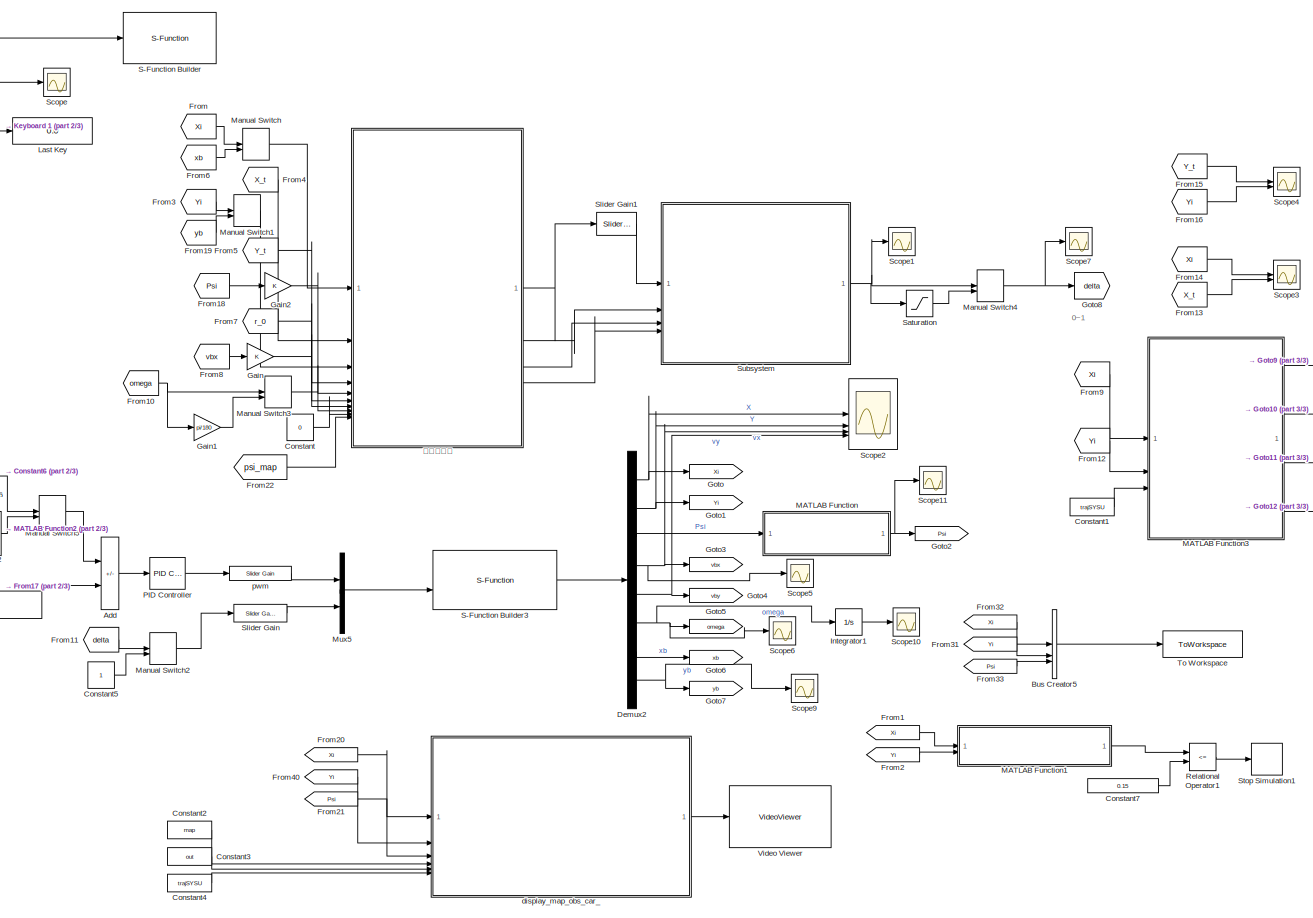
[diagram: root canvas - part 1/3, most of the canvas]
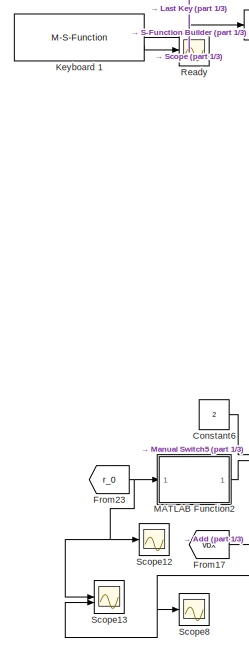
[diagram: root canvas - part 2/3, middle left region]
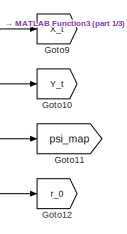
[diagram: root canvas - part 3/3, middle right region]
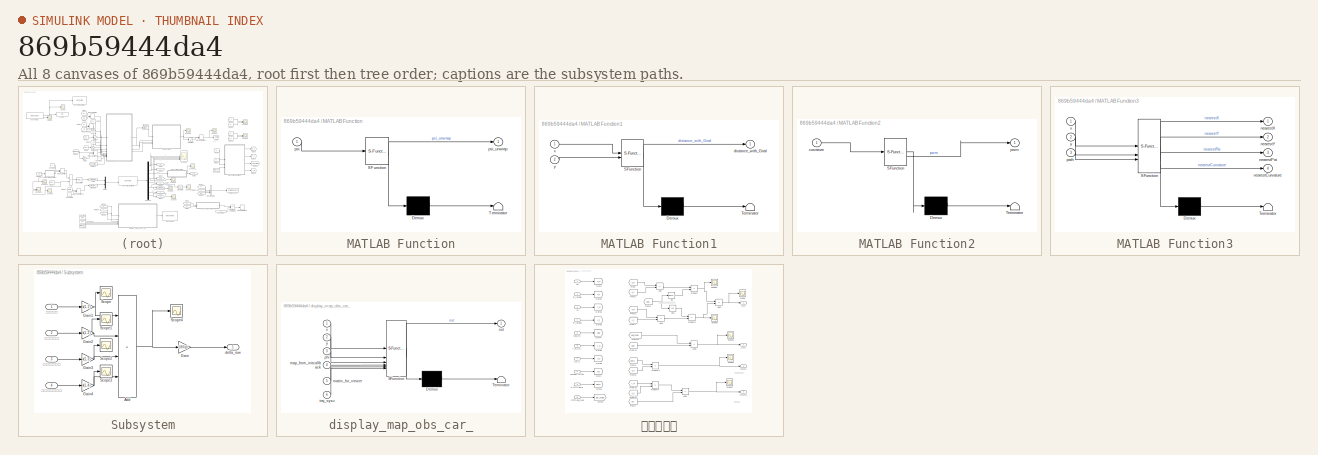
[diagram: thumbnail index - all 8 canvases of the model, root first then tree order]
MODEL slx_869b59444da4
KIND model
CONFIG AbsTol = auto
CONFIG EnableMultiTasking = off
CONFIG FixedStep = 0.001
CONFIG InitFcn = load('traj\traj_diySYSU.mat');\nload('traj\sysu_standard.mat');\nrun lqr_nums.m
CONFIG MaxStep = auto
CONFIG MinStep = auto
CONFIG RelTol = 1e-3
CONFIG SampleTimeConstraint = Unconstrained
CONFIG SolverName = FixedStepAuto
CONFIG StartTime = 0.0
CONFIG StopFcn = run stopFunc.m
CONFIG StopTime = 40
BLOCK [Sum] Add
  IconShape = rectangular
  Inputs = +-
BLOCK [BusCreator] Bus Creator5
  DisplayOption = bar
  InheritFromInputs = on
  Inputs = 3
BLOCK [Constant] Constant
  Value = 0
BLOCK [Constant] Constant1
  Value = trajSYSU
BLOCK [Constant] Constant2
  Value = map
BLOCK [Constant] Constant3
  Value = out
BLOCK [Constant] Constant4
  Value = trajSYSU
BLOCK [Constant] Constant5
BLOCK [Constant] Constant6
  Value = 2
BLOCK [Constant] Constant7
  Value = 0.15
BLOCK [Demux] Demux2
  Outputs = 8
BLOCK [From] From
  GotoTag = Xi
BLOCK [From] From1
  GotoTag = Xi
BLOCK [From] From10
  GotoTag = omega
BLOCK [From] From11
  GotoTag = delta
BLOCK [From] From12
  GotoTag = Yi
BLOCK [From] From13
  Commented = on
  GotoTag = X_t
BLOCK [From] From14
  Commented = on
  GotoTag = Xi
BLOCK [From] From15
  Commented = on
  GotoTag = Y_t
BLOCK [From] From16
  Commented = on
  GotoTag = Yi
BLOCK [From] From17
  GotoTag = vbx
BLOCK [From] From18
  GotoTag = Psi
BLOCK [From] From19
  GotoTag = yb
BLOCK [From] From2
  GotoTag = Yi
BLOCK [From] From20
  GotoTag = Xi
BLOCK [From] From21
  GotoTag = Psi
BLOCK [From] From22
  GotoTag = psi_map
BLOCK [From] From23
  GotoTag = r_0
BLOCK [From] From3
  GotoTag = Yi
BLOCK [From] From31
  GotoTag = Yi
BLOCK [From] From32
  GotoTag = Xi
BLOCK [From] From33
  GotoTag = Psi
BLOCK [From] From4
  GotoTag = X_t
BLOCK [From] From40
  GotoTag = Yi
BLOCK [From] From5
  GotoTag = Y_t
BLOCK [From] From6
  GotoTag = xb
BLOCK [From] From7
  GotoTag = r_0
BLOCK [From] From8
  GotoTag = vbx
BLOCK [From] From9
  GotoTag = Xi
BLOCK [Gain] Gain
BLOCK [Gain] Gain1
  Gain = pi/180
BLOCK [Gain] Gain2
BLOCK [Goto] Goto
  GotoTag = Xi
BLOCK [Goto] Goto1
  GotoTag = Yi
BLOCK [Goto] Goto10
  GotoTag = Y_t
BLOCK [Goto] Goto11
  GotoTag = psi_map
BLOCK [Goto] Goto12
  GotoTag = r_0
BLOCK [Goto] Goto2
  GotoTag = Psi
BLOCK [Goto] Goto3
  GotoTag = vbx
BLOCK [Goto] Goto4
  GotoTag = vby
BLOCK [Goto] Goto5
  GotoTag = omega
BLOCK [Goto] Goto6
  GotoTag = xb
BLOCK [Goto] Goto7
  GotoTag = yb
BLOCK [Goto] Goto8
  GotoTag = delta
BLOCK [Goto] Goto9
  GotoTag = X_t
BLOCK [Integrator] Integrator1
BLOCK [M-S-Function] Keyboard 1
  Commented = on
  FunctionName = sfun_keyboard_input_v1_2b
BLOCK [Display] Last Key
  Commented = on
  Decimation = 1
BLOCK [SubSystem] MATLAB Function
  ErrorFcn = Stateflow.Translate.translate
  PermitHierarchicalResolution = ExplicitOnly
  SFBlockType = MATLAB Function
  TreatAsAtomicUnit = on
BLOCK [Demux] MATLAB Function/ Demux 
  Outputs = 1
BLOCK [S-Function] MATLAB Function/ SFunction 
  EnableBusSupport = on
  FunctionName = sf_sfun
  PortCounts = [1 2]
  SFcnIsStateOwnerBlock = off
  SFunctionDeploymentMode = off
  Tag = Stateflow S-Function 3
BLOCK [Terminator] MATLAB Function/ Terminator 
BLOCK [Inport] MATLAB Function/psi
BLOCK [Outport] MATLAB Function/psi_unwrap
BLOCK [SubSystem] MATLAB Function1
  ErrorFcn = Stateflow.Translate.translate
  PermitHierarchicalResolution = ExplicitOnly
  SFBlockType = MATLAB Function
  TreatAsAtomicUnit = on
BLOCK [Demux] MATLAB Function1/ Demux 
  Outputs = 1
BLOCK [S-Function] MATLAB Function1/ SFunction 
  EnableBusSupport = on
  FunctionName = sf_sfun
  PortCounts = [2 2]
  SFcnIsStateOwnerBlock = off
  SFunctionDeploymentMode = off
  Tag = Stateflow S-Function 1
BLOCK [Terminator] MATLAB Function1/ Terminator 
BLOCK [Outport] MATLAB Function1/distance_with_Goal
BLOCK [Inport] MATLAB Function1/x
BLOCK [Inport] MATLAB Function1/y
  Port = 2
BLOCK [SubSystem] MATLAB Function2
  ErrorFcn = Stateflow.Translate.translate
  LibrarySourceBlock = simulink/User-Defined\nFunctions/MATLAB Function
  PermitHierarchicalResolution = ExplicitOnly
  SFBlockType = MATLAB Function
  TreatAsAtomicUnit = on
BLOCK [Demux] MATLAB Function2/ Demux 
  Outputs = 1
BLOCK [S-Function] MATLAB Function2/ SFunction 
  EnableBusSupport = on
  FunctionName = sf_sfun
  PortCounts = [1 2]
  SFcnIsStateOwnerBlock = off
  SFunctionDeploymentMode = off
  Tag = Stateflow S-Function 4
BLOCK [Terminator] MATLAB Function2/ Terminator 
BLOCK [Inport] MATLAB Function2/curvature
BLOCK [Outport] MATLAB Function2/pwm
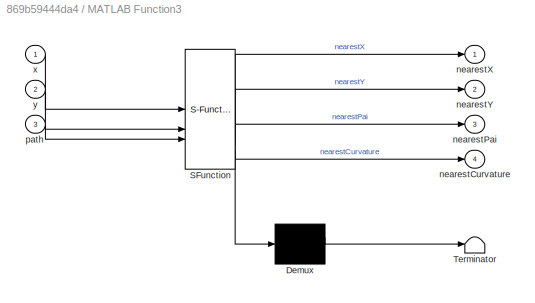
BLOCK [SubSystem] MATLAB Function3
  ErrorFcn = Stateflow.Translate.translate
  LibrarySourceBlock = simulink/User-Defined\nFunctions/MATLAB Function
  PermitHierarchicalResolution = ExplicitOnly
  SFBlockType = MATLAB Function
  TreatAsAtomicUnit = on
BLOCK [Demux] MATLAB Function3/ Demux 
  Outputs = 1
BLOCK [S-Function] MATLAB Function3/ SFunction 
  EnableBusSupport = on
  FunctionName = sf_sfun
  PortCounts = [3 5]
  SFcnIsStateOwnerBlock = off
  SFunctionDeploymentMode = off
  Tag = Stateflow S-Function 5
BLOCK [Terminator] MATLAB Function3/ Terminator 
BLOCK [Outport] MATLAB Function3/nearestCurvature
  Port = 4
BLOCK [Outport] MATLAB Function3/nearestPai
  Port = 3
BLOCK [Outport] MATLAB Function3/nearestX
BLOCK [Outport] MATLAB Function3/nearestY
  Port = 2
BLOCK [Inport] MATLAB Function3/path
  Port = 3
BLOCK [Inport] MATLAB Function3/x
BLOCK [Inport] MATLAB Function3/y
  Port = 2
BLOCK [ManualSwitch] Manual Switch
BLOCK [ManualSwitch] Manual Switch1
BLOCK [ManualSwitch] Manual Switch2
BLOCK [ManualSwitch] Manual Switch3
BLOCK [ManualSwitch] Manual Switch4
  CurrentSetting = 0
BLOCK [ManualSwitch] Manual Switch5
  CurrentSetting = 0
BLOCK [Mux] Mux5
  DisplayOption = bar
  Inputs = 2
BLOCK [Reference] PID Controller  REF=slpidlib/PID Controller
  LibrarySourceBlock = simulink/Continuous/PID Controller
  SourceBlock = slpidlib/PID Controller
  SourceType = PID 1dof
BLOCK [Scope] Ready
  Commented = on
  Floating = off
  NumInputPorts = 1
  ScopeSpecificationString = Simulink.scopes.TimeScopeBlockCfg('CurrentConfiguration', extmgr.ConfigurationSet(extmgr.Configuration('Core','General UI',true),extmgr.Configuration('Core','Source UI',true),extmgr.Configuration('Sources','WiredSimulink',true,'DataLoggingVariableName','ScopeData1','DataLoggingSaveFormat','StructureWithTime','DataLoggingLimitDataPoints',true,'DataLoggingDecimation','1','DataLoggingDecimateData',tr...<+1674ch>
BLOCK [RelationalOperator] Relational Operator1
  InputSameDT = off
  Operator = <=
  OutDataTypeStr = boolean
BLOCK [S-Function] S-Function Builder
  Commented = on
  CopyFcn = set_param(gcbh,'LinkStatus','none')
  EnableBusSupport = off
  FunctionName = key
  OpenFcn = sfunctionwizard(gcbh)
  SFcnIsStateOwnerBlock = off
  SFunctionDeploymentMode = off
  SFunctionModules = key_wrapper
BLOCK [S-Function] S-Function Builder3
  CopyFcn = set_param(gcbh,'LinkStatus','none')
  EnableBusSupport = off
  FunctionName = car_fast_sfunc
  OpenFcn = sfunctionwizard(gcbh)
  SFcnIsStateOwnerBlock = off
  SFunctionDeploymentMode = off
  SFunctionModules = car_fast_sfunc_wrapper
BLOCK [Saturate] Saturation
  LowerLimit = -1
  UpperLimit = 1
BLOCK [Scope] Scope
  Commented = on
  Floating = off
  NameLocation = top
  NumInputPorts = 1
  ScopeSpecificationString = Simulink.scopes.TimeScopeBlockCfg('CurrentConfiguration', extmgr.ConfigurationSet(extmgr.Configuration('Core','General UI',true),extmgr.Configuration('Core','Source UI',true),extmgr.Configuration('Sources','WiredSimulink',true,'DataLoggingSaveFormat','StructureWithTime','DataLoggingLimitDataPoints',true,'DataLoggingDecimation','1','DataLoggingDecimateData',true),extmgr.Configuration('Visuals','Tim...<+1623ch>
BLOCK [Scope] Scope1
  Floating = off
  NumInputPorts = 1
  ScopeSpecificationString = Simulink.scopes.TimeScopeBlockCfg('CurrentConfiguration', extmgr.ConfigurationSet(extmgr.Configuration('Core','General UI',true),extmgr.Configuration('Core','Source UI',true),extmgr.Configuration('Sources','WiredSimulink',true,'DataLoggingVariableName','ScopeData5'),extmgr.Configuration('Visuals','Time Domain',true,'SerializedDisplays',{struct('MinYLimReal','-47.87554','MaxYLimReal','115.5001','YL...<+1453ch>
BLOCK [Scope] Scope10
  Floating = off
  NumInputPorts = 1
  ScopeSpecificationString = Simulink.scopes.TimeScopeBlockCfg('CurrentConfiguration', extmgr.ConfigurationSet(extmgr.Configuration('Core','General UI',true),extmgr.Configuration('Core','Source UI',true),extmgr.Configuration('Sources','WiredSimulink',true,'DataLoggingVariableName','ScopeData7'),extmgr.Configuration('Visuals','Time Domain',true,'SerializedDisplays',{struct('MinYLimReal','-0.04351','MaxYLimReal','0.39157','YLab...<+1370ch>
BLOCK [Scope] Scope11
  Floating = off
  NumInputPorts = 1
  ScopeSpecificationString = Simulink.scopes.TimeScopeBlockCfg('CurrentConfiguration', extmgr.ConfigurationSet(extmgr.Configuration('Core','General UI',true),extmgr.Configuration('Core','Source UI',true),extmgr.Configuration('Sources','WiredSimulink',true,'DataLoggingVariableName','ScopeData1'),extmgr.Configuration('Visuals','Time Domain',true,'SerializedDisplays',{struct('MinYLimReal','-0.22458','MaxYLimReal','2.02118','YLab...<+1374ch>
BLOCK [Scope] Scope12
  Floating = off
  NumInputPorts = 1
  ScopeSpecificationString = Simulink.scopes.TimeScopeBlockCfg('CurrentConfiguration', extmgr.ConfigurationSet(extmgr.Configuration('Core','General UI',true),extmgr.Configuration('Core','Source UI',true),extmgr.Configuration('Sources','WiredSimulink',true,'DataLoggingVariableName','ScopeData1'),extmgr.Configuration('Visuals','Time Domain',true,'SerializedDisplays',{struct('MinYLimReal','-4.5425','MaxYLimReal','4.74395','YLabe...<+1408ch>
BLOCK [Scope] Scope13
  Floating = off
  NumInputPorts = 2
  ScopeSpecificationString = Simulink.scopes.TimeScopeBlockCfg('CurrentConfiguration', extmgr.ConfigurationSet(extmgr.Configuration('Core','General UI',true),extmgr.Configuration('Core','Source UI',true),extmgr.Configuration('Sources','WiredSimulink',true,'DataLoggingVariableName','ScopeData2'),extmgr.Configuration('Visuals','Time Domain',true,'SerializedDisplays',{struct('MinYLimReal','-5.69864','MaxYLimReal','5.69864','YLab...<+1417ch>
BLOCK [Scope] Scope2
  Floating = off
  NumInputPorts = 4
  ScopeSpecificationString = Simulink.scopes.TimeScopeBlockCfg('CurrentConfiguration', extmgr.ConfigurationSet(extmgr.Configuration('Core','General UI',true),extmgr.Configuration('Core','Source UI',true),extmgr.Configuration('Sources','WiredSimulink',true,'DataLoggingVariableName','ScopeData6'),extmgr.Configuration('Visuals','Time Domain',true,'SerializedDisplays',{struct('MinYLimReal','-0.26967','MaxYLimReal','2.27092','YLab...<+1407ch>
BLOCK [Scope] Scope3
  Commented = on
  Floating = off
  NumInputPorts = 2
  ScopeSpecificationString = Simulink.scopes.TimeScopeBlockCfg('CurrentConfiguration', extmgr.ConfigurationSet(extmgr.Configuration('Core','General UI',true),extmgr.Configuration('Core','Source UI',true),extmgr.Configuration('Sources','WiredSimulink',true,'DataLoggingVariableName','ScopeData7'),extmgr.Configuration('Visuals','Time Domain',true,'SerializedDisplays',{struct('MinYLimReal','0.60595','MaxYLimReal','2.54649','YLabe...<+1373ch>
BLOCK [Scope] Scope4
  Commented = on
  Floating = off
  NumInputPorts = 2
  ScopeSpecificationString = Simulink.scopes.TimeScopeBlockCfg('CurrentConfiguration', extmgr.ConfigurationSet(extmgr.Configuration('Core','General UI',true),extmgr.Configuration('Core','Source UI',true),extmgr.Configuration('Sources','WiredSimulink',true,'DataLoggingVariableName','ScopeData8'),extmgr.Configuration('Visuals','Time Domain',true,'SerializedDisplays',{struct('MinYLimReal','0.00834','MaxYLimReal','1.08796','YLabe...<+1373ch>
BLOCK [Scope] Scope5
  Floating = off
  NumInputPorts = 1
  ScopeSpecificationString = Simulink.scopes.TimeScopeBlockCfg('CurrentConfiguration', extmgr.ConfigurationSet(extmgr.Configuration('Core','General UI',true),extmgr.Configuration('Core','Source UI',true),extmgr.Configuration('Sources','WiredSimulink',true,'DataLoggingVariableName','ScopeData1'),extmgr.Configuration('Visuals','Time Domain',true,'SerializedDisplays',{struct('MinYLimReal','-0.13346','MaxYLimReal','1.20115','YLab...<+1361ch>
BLOCK [Scope] Scope6
  Floating = off
  NumInputPorts = 1
  ScopeSpecificationString = Simulink.scopes.TimeScopeBlockCfg('CurrentConfiguration', extmgr.ConfigurationSet(extmgr.Configuration('Core','General UI',true),extmgr.Configuration('Core','Source UI',true),extmgr.Configuration('Sources','WiredSimulink',true,'DataLoggingVariableName','ScopeData1'),extmgr.Configuration('Visuals','Time Domain',true,'SerializedDisplays',{struct('MinYLimReal','-1.00000','MaxYLimReal','1.00000','YLab...<+1364ch>
BLOCK [Scope] Scope7
  Floating = off
  NumInputPorts = 1
  ScopeSpecificationString = Simulink.scopes.TimeScopeBlockCfg('CurrentConfiguration', extmgr.ConfigurationSet(extmgr.Configuration('Core','General UI',true),extmgr.Configuration('Core','Source UI',true),extmgr.Configuration('Sources','WiredSimulink',true,'DataLoggingVariableName','ScopeData2'),extmgr.Configuration('Visuals','Time Domain',true,'SerializedDisplays',{struct('MinYLimReal','-0.99103','MaxYLimReal','1.125','YLabel...<+1479ch>
BLOCK [Scope] Scope8
  Floating = off
  NumInputPorts = 1
  ScopeSpecificationString = Simulink.scopes.TimeScopeBlockCfg('CurrentConfiguration', extmgr.ConfigurationSet(extmgr.Configuration('Core','General UI',true),extmgr.Configuration('Core','Source UI',true),extmgr.Configuration('Sources','WiredSimulink',true,'DataLoggingVariableName','ScopeData5'),extmgr.Configuration('Visuals','Time Domain',true,'SerializedDisplays',{struct('MinYLimReal','-0.39783','MaxYLimReal','3.58043','YLab...<+1393ch>
BLOCK [Scope] Scope9
  Floating = off
  NumInputPorts = 1
  ScopeSpecificationString = Simulink.scopes.TimeScopeBlockCfg('CurrentConfiguration', extmgr.ConfigurationSet(extmgr.Configuration('Core','General UI',true),extmgr.Configuration('Core','Source UI',true),extmgr.Configuration('Sources','WiredSimulink',true,'DataLoggingVariableName','ScopeData6'),extmgr.Configuration('Visuals','Time Domain',true,'SerializedDisplays',{struct('MinYLimReal','-0.00256','MaxYLimReal','0.02095','YLab...<+1361ch>
BLOCK [Reference] Slider Gain  REF=simulink/Math
Operations/Slider
Gain
  SourceBlock = simulink/Math\nOperations/Slider\nGain
  SourceType = Slider Gain
BLOCK [Reference] Slider Gain1  REF=simulink/Math
Operations/Slider
Gain
  SourceBlock = simulink/Math\nOperations/Slider\nGain
  SourceType = Slider Gain
BLOCK [Stop] Stop Simulation1
BLOCK [SubSystem] Subsystem
BLOCK [Sum] Subsystem/Add
  IconShape = rectangular
  Inputs = ++++
BLOCK [Gain] Subsystem/Gain
  Gain = 180/pi
BLOCK [Gain] Subsystem/Gain1
  Gain = k(1,1)
BLOCK [Gain] Subsystem/Gain2
  Gain = k(1,2)
BLOCK [Gain] Subsystem/Gain3
  Gain = k(1,3)
BLOCK [Gain] Subsystem/Gain4
  Gain = k(1,4)
BLOCK [Scope] Subsystem/Scope
  Floating = off
  NumInputPorts = 1
  ScopeSpecificationString = Simulink.scopes.TimeScopeBlockCfg('CurrentConfiguration', extmgr.ConfigurationSet(extmgr.Configuration('Core','General UI',true),extmgr.Configuration('Core','Source UI',true),extmgr.Configuration('Sources','WiredSimulink',true,'DataLoggingVariableName','ScopeData9'),extmgr.Configuration('Visuals','Time Domain',true),extmgr.Configuration('Tools','Plot Navigation',true),extmgr.Configuration('Tools',...<+40ch>
BLOCK [Scope] Subsystem/Scope1
  Floating = off
  NumInputPorts = 1
  ScopeSpecificationString = Simulink.scopes.TimeScopeBlockCfg('CurrentConfiguration', extmgr.ConfigurationSet(extmgr.Configuration('Core','General UI',true),extmgr.Configuration('Core','Source UI',true),extmgr.Configuration('Sources','WiredSimulink',true,'DataLoggingVariableName','ScopeData10'),extmgr.Configuration('Visuals','Time Domain',true),extmgr.Configuration('Tools','Plot Navigation',true),extmgr.Configuration('Tools'...<+41ch>
BLOCK [Scope] Subsystem/Scope2
  Floating = off
  NumInputPorts = 1
  ScopeSpecificationString = Simulink.scopes.TimeScopeBlockCfg('CurrentConfiguration', extmgr.ConfigurationSet(extmgr.Configuration('Core','General UI',true),extmgr.Configuration('Core','Source UI',true),extmgr.Configuration('Sources','WiredSimulink',true,'DataLoggingVariableName','ScopeData11'),extmgr.Configuration('Visuals','Time Domain',true),extmgr.Configuration('Tools','Plot Navigation',true),extmgr.Configuration('Tools'...<+41ch>
BLOCK [Scope] Subsystem/Scope3
  Floating = off
  NumInputPorts = 1
  ScopeSpecificationString = Simulink.scopes.TimeScopeBlockCfg('CurrentConfiguration', extmgr.ConfigurationSet(extmgr.Configuration('Core','General UI',true),extmgr.Configuration('Core','Source UI',true),extmgr.Configuration('Sources','WiredSimulink',true,'DataLoggingVariableName','ScopeData12'),extmgr.Configuration('Visuals','Time Domain',true,'SerializedDisplays',{struct('MinYLimReal','-1.00000','MaxYLimReal','1.00000','YLa...<+1400ch>
BLOCK [Scope] Subsystem/Scope4
  Floating = off
  NumInputPorts = 1
  ScopeSpecificationString = Simulink.scopes.TimeScopeBlockCfg('CurrentConfiguration', extmgr.ConfigurationSet(extmgr.Configuration('Core','General UI',true),extmgr.Configuration('Core','Source UI',true),extmgr.Configuration('Sources','WiredSimulink',true,'DataLoggingVariableName','ScopeData13'),extmgr.Configuration('Visuals','Time Domain',true,'SerializedDisplays',{struct('MinYLimReal','-1.00000','MaxYLimReal','1.00000','YLa...<+1363ch>
BLOCK [Outport] Subsystem/delta_row
BLOCK [Inport] Subsystem/侧向速度偏差
  Port = 3
BLOCK [Inport] Subsystem/横向偏差
BLOCK [Inport] Subsystem/横摆角速度偏差
  Port = 4
BLOCK [Inport] Subsystem/航向角偏差
  Port = 2
BLOCK [ToWorkspace] To Workspace
  FixptAsFi = on
  MaxDataPoints = inf
  SampleTime = -1
  SaveFormat = Timeseries
  VariableName = simout
BLOCK [VideoViewer] Video Viewer
  FigPos = [295.4 757.2 1088 564]
  ScopeSpecificationString = vipscopes.VideoViewerScopeCfg('CurrentConfiguration', extmgr.ConfigurationSet(extmgr.Configuration('Core','General UI',true),extmgr.Configuration('Core','Source UI',true),extmgr.Configuration('Sources','WiredSimulink',true),extmgr.Configuration('Visuals','Video',true),extmgr.Configuration('Tools','Image Navigation Tools',true),extmgr.Configuration('Tools','Image Tool',true),extmgr.Configuration('T...<+80ch>
  colormapValue = gray(256)
BLOCK [SubSystem] display_map_obs_car_
  ErrorFcn = Stateflow.Translate.translate
  PermitHierarchicalResolution = ExplicitOnly
  SFBlockType = MATLAB Function
  TreatAsAtomicUnit = on
BLOCK [Demux] display_map_obs_car_/ Demux 
  Outputs = 1
BLOCK [S-Function] display_map_obs_car_/ SFunction 
  EnableBusSupport = on
  FunctionName = sf_sfun
  PortCounts = [6 2]
  SFcnIsStateOwnerBlock = off
  SFunctionDeploymentMode = off
  Tag = Stateflow S-Function 2
BLOCK [Terminator] display_map_obs_car_/ Terminator 
BLOCK [Inport] display_map_obs_car_/map_from_initcallback
  Port = 4
BLOCK [Inport] display_map_obs_car_/matrix_for_viewer
  Port = 5
BLOCK [Outport] display_map_obs_car_/out
BLOCK [Inport] display_map_obs_car_/phi
  Port = 3
BLOCK [Inport] display_map_obs_car_/traj_sysu
  Port = 6
BLOCK [Inport] display_map_obs_car_/x
BLOCK [Inport] display_map_obs_car_/y
  Port = 2
BLOCK [Reference] pwm  REF=simulink/Math
Operations/Slider
Gain
  SourceBlock = simulink/Math\nOperations/Slider\nGain
  SourceType = Slider Gain
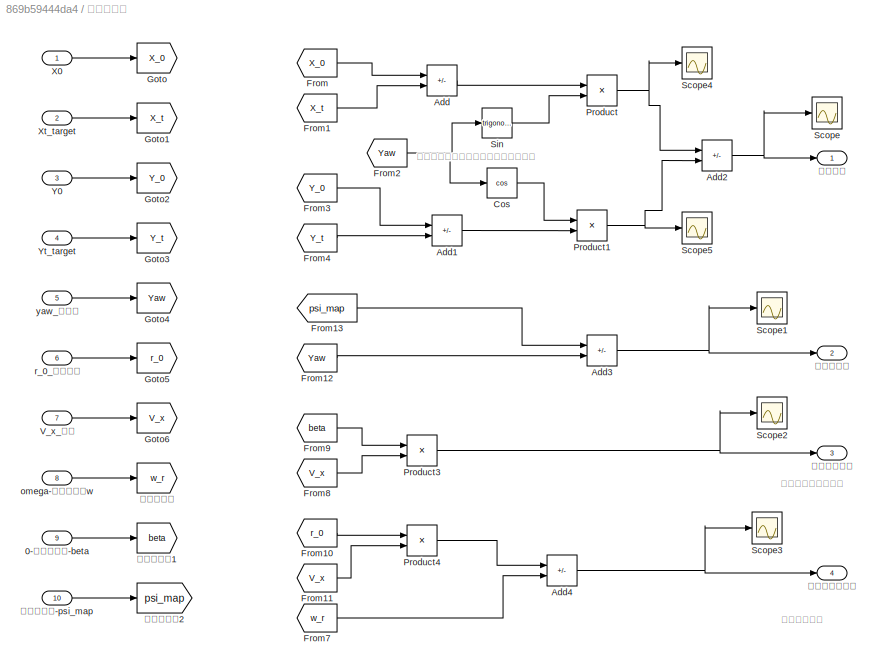
BLOCK [SubSystem] 状态量误差
BLOCK [Inport] 状态量误差/0-质心侧偏角-beta
  Port = 9
BLOCK [Sum] 状态量误差/Add
  IconShape = rectangular
  Inputs = +-
BLOCK [Sum] 状态量误差/Add1
  IconShape = rectangular
  Inputs = +-
BLOCK [Sum] 状态量误差/Add2
  IconShape = rectangular
  Inputs = -+
BLOCK [Sum] 状态量误差/Add3
  IconShape = rectangular
  Inputs = -+
BLOCK [Sum] 状态量误差/Add4
  IconShape = rectangular
  Inputs = -+
BLOCK [Trigonometry] 状态量误差/Cos
  Operator = cos
BLOCK [From] 状态量误差/From
  GotoTag = X_0
BLOCK [From] 状态量误差/From1
  GotoTag = X_t
BLOCK [From] 状态量误差/From10
  GotoTag = r_0
BLOCK [From] 状态量误差/From11
  GotoTag = V_x
BLOCK [From] 状态量误差/From12
  GotoTag = Yaw
BLOCK [From] 状态量误差/From13
  GotoTag = psi_map
BLOCK [From] 状态量误差/From2
  GotoTag = Yaw
BLOCK [From] 状态量误差/From3
  GotoTag = Y_0
BLOCK [From] 状态量误差/From4
  GotoTag = Y_t
BLOCK [From] 状态量误差/From7
  GotoTag = w_r
BLOCK [From] 状态量误差/From8
  GotoTag = V_x
BLOCK [From] 状态量误差/From9
  GotoTag = beta
BLOCK [Goto] 状态量误差/Goto
  GotoTag = X_0
BLOCK [Goto] 状态量误差/Goto1
  GotoTag = X_t
BLOCK [Goto] 状态量误差/Goto2
  GotoTag = Y_0
BLOCK [Goto] 状态量误差/Goto3
  GotoTag = Y_t
BLOCK [Goto] 状态量误差/Goto4
  GotoTag = Yaw
BLOCK [Goto] 状态量误差/Goto5
  GotoTag = r_0
BLOCK [Goto] 状态量误差/Goto6
  GotoTag = V_x
BLOCK [Product] 状态量误差/Product
BLOCK [Product] 状态量误差/Product1
BLOCK [Product] 状态量误差/Product3
BLOCK [Product] 状态量误差/Product4
BLOCK [Scope] 状态量误差/Scope
  Floating = off
  NumInputPorts = 1
  ScopeSpecificationString = Simulink.scopes.TimeScopeBlockCfg('CurrentConfiguration', extmgr.ConfigurationSet(extmgr.Configuration('Core','General UI',true),extmgr.Configuration('Core','Source UI',true),extmgr.Configuration('Sources','WiredSimulink',true,'DataLoggingVariableName','ScopeData1'),extmgr.Configuration('Visuals','Time Domain',true,'SerializedDisplays',{struct('MinYLimReal','-0.01902','MaxYLimReal','0.15912','YLab...<+1363ch>
BLOCK [Scope] 状态量误差/Scope1
  Floating = off
  NumInputPorts = 1
  ScopeSpecificationString = Simulink.scopes.TimeScopeBlockCfg('CurrentConfiguration', extmgr.ConfigurationSet(extmgr.Configuration('Core','General UI',true),extmgr.Configuration('Core','Source UI',true),extmgr.Configuration('Sources','WiredSimulink',true,'DataLoggingVariableName','ScopeData2'),extmgr.Configuration('Visuals','Time Domain',true,'SerializedDisplays',{struct('MinYLimReal','-0.97133','MaxYLimReal','0.60709','YLab...<+1363ch>
BLOCK [Scope] 状态量误差/Scope2
  Floating = off
  NumInputPorts = 1
  ScopeSpecificationString = Simulink.scopes.TimeScopeBlockCfg('CurrentConfiguration', extmgr.ConfigurationSet(extmgr.Configuration('Core','General UI',true),extmgr.Configuration('Core','Source UI',true),extmgr.Configuration('Sources','WiredSimulink',true,'DataLoggingVariableName','ScopeData3'),extmgr.Configuration('Visuals','Time Domain',true,'SerializedDisplays',{struct('MinYLimReal','-1.00000','MaxYLimReal','1.00000','YLab...<+1367ch>
BLOCK [Scope] 状态量误差/Scope3
  Floating = off
  NumInputPorts = 1
  ScopeSpecificationString = Simulink.scopes.TimeScopeBlockCfg('CurrentConfiguration', extmgr.ConfigurationSet(extmgr.Configuration('Core','General UI',true),extmgr.Configuration('Core','Source UI',true),extmgr.Configuration('Sources','WiredSimulink',true,'DataLoggingVariableName','ScopeData4'),extmgr.Configuration('Visuals','Time Domain',true,'SerializedDisplays',{struct('MinYLimReal','-1.00000','MaxYLimReal','1.00000','YLab...<+1363ch>
BLOCK [Scope] 状态量误差/Scope4
  Floating = off
  NumInputPorts = 1
  ScopeSpecificationString = Simulink.scopes.TimeScopeBlockCfg('CurrentConfiguration', extmgr.ConfigurationSet(extmgr.Configuration('Core','General UI',true),extmgr.Configuration('Core','Source UI',true),extmgr.Configuration('Sources','WiredSimulink',true,'DataLoggingVariableName','ScopeData3'),extmgr.Configuration('Visuals','Time Domain',true,'SerializedDisplays',{struct('MinYLimReal','-0.07348','MaxYLimReal','0.01455','YLab...<+1366ch>
BLOCK [Scope] 状态量误差/Scope5
  Floating = off
  NumInputPorts = 1
  ScopeSpecificationString = Simulink.scopes.TimeScopeBlockCfg('CurrentConfiguration', extmgr.ConfigurationSet(extmgr.Configuration('Core','General UI',true),extmgr.Configuration('Core','Source UI',true),extmgr.Configuration('Sources','WiredSimulink',true,'DataLoggingVariableName','ScopeData4'),extmgr.Configuration('Visuals','Time Domain',true,'SerializedDisplays',{struct('MinYLimReal','-0.01188','MaxYLimReal','0.09182','YLab...<+1367ch>
BLOCK [Trigonometry] 状态量误差/Sin
BLOCK [Inport] 状态量误差/V_x_车速
  Port = 7
BLOCK [Inport] 状态量误差/X0
BLOCK [Inport] 状态量误差/Xt_target
  Port = 2
BLOCK [Inport] 状态量误差/Y0
  Port = 3
BLOCK [Inport] 状态量误差/Yt_target
  Port = 4
BLOCK [Inport] 状态量误差/omega-航向角速度w
  Port = 8
BLOCK [Inport] 状态量误差/r_0_道路曲率
  Port = 6
BLOCK [Inport] 状态量误差/yaw_航向角
  Port = 5
BLOCK [Outport] 状态量误差/侧向速度偏差
  Port = 3
BLOCK [Goto] 状态量误差/当前的角度
  GotoTag = w_r
BLOCK [Goto] 状态量误差/当前的角度1
  GotoTag = beta
BLOCK [Goto] 状态量误差/当前的角度2
  GotoTag = psi_map
BLOCK [Inport] 状态量误差/期望航向角-psi_map
  Port = 10
BLOCK [Outport] 状态量误差/横向偏差
BLOCK [Outport] 状态量误差/横摆角速度误差
  Port = 4
BLOCK [Outport] 状态量误差/航向角偏差
  Port = 2
ANNOTATION (root): 0~1
ANNOTATION 状态量误差: 坐标转换，笛卡尔坐标系到小车坐标系
ANNOTATION 状态量误差: 横向位置偏差变化率
ANNOTATION 状态量误差: 航向角变化率
LINE Add:1 -> PID Controller:1
LINE Bus Creator5:1 -> To Workspace:1
LINE Constant1:1 -> MATLAB Function3:3
LINE Constant2:1 -> display_map_obs_car_:4
LINE Constant3:1 -> display_map_obs_car_:5
LINE Constant4:1 -> display_map_obs_car_:6
LINE Constant5:1 -> Manual Switch2:2
LINE Constant6:1 -> Manual Switch5:1
LINE Constant7:1 -> Relational Operator1:2
LINE Constant:1 -> 状态量误差:9
NET Demux2:1 -> Goto:1, Scope2:1
NET Demux2:2 -> Goto1:1, Scope2:2
LINE Demux2:3 -> MATLAB Function:1
NET Demux2:4 -> Goto3:1, Scope2:3, Scope5:1
NET Demux2:5 -> Goto4:1, Scope2:4
NET Demux2:6 -> Goto5:1, Integrator1:1, Scope6:1
LINE Demux2:7 -> Goto6:1
NET Demux2:8 -> Goto7:1, Scope9:1
NET From10:1 -> Gain1:1, Manual Switch3:1
LINE From11:1 -> Manual Switch2:1
LINE From12:1 -> MATLAB Function3:2
LINE From13:1 -> Scope3:2
LINE From14:1 -> Scope3:1
LINE From15:1 -> Scope4:1
LINE From16:1 -> Scope4:2
NET From17:1 -> Add:2, Scope13:2, Scope8:1
LINE From18:1 -> Gain2:1
LINE From19:1 -> Manual Switch1:2
LINE From1:1 -> MATLAB Function1:1
LINE From20:1 -> display_map_obs_car_:1
LINE From21:1 -> display_map_obs_car_:3
LINE From22:1 -> 状态量误差:10
NET From23:1 -> MATLAB Function2:1, Scope12:1, Scope13:1
LINE From2:1 -> MATLAB Function1:2
LINE From31:1 -> Bus Creator5:2
LINE From32:1 -> Bus Creator5:1
LINE From33:1 -> Bus Creator5:3
LINE From3:1 -> Manual Switch1:1
LINE From40:1 -> display_map_obs_car_:2
LINE From4:1 -> 状态量误差:2
LINE From5:1 -> 状态量误差:4
LINE From6:1 -> Manual Switch:2
LINE From7:1 -> 状态量误差:6
LINE From8:1 -> Gain:1
LINE From9:1 -> MATLAB Function3:1
LINE From:1 -> Manual Switch:1
LINE Gain1:1 -> Manual Switch3:2
LINE Gain2:1 -> 状态量误差:5
LINE Gain:1 -> 状态量误差:7
LINE Integrator1:1 -> Scope10:1
NET Keyboard 1:1 -> Last Key:1, S-Function Builder:1, Scope:1
LINE Keyboard 1:2 -> Ready:1
LINE MATLAB Function1:1 -> Relational Operator1:1
LINE MATLAB Function2:1 -> Manual Switch5:2
LINE MATLAB Function3:1 -> Goto9:1
LINE MATLAB Function3:2 -> Goto10:1
LINE MATLAB Function3:3 -> Goto11:1
LINE MATLAB Function3:4 -> Goto12:1
NET MATLAB Function:1 -> Goto2:1, Scope11:1
LINE Manual Switch1:1 -> 状态量误差:3
LINE Manual Switch2:1 -> Slider Gain:1
LINE Manual Switch3:1 -> 状态量误差:8
NET Manual Switch4:1 -> Goto8:1, Scope7:1
LINE Manual Switch5:1 -> Add:1
LINE Manual Switch:1 -> 状态量误差:1
LINE Mux5:1 -> S-Function Builder3:2
LINE PID Controller:1 -> pwm:1
LINE Relational Operator1:1 -> Stop Simulation1:1
LINE S-Function Builder3:1 -> Demux2:1
LINE Saturation:1 -> Manual Switch4:2
LINE Slider Gain1:1 -> Subsystem:1
LINE Slider Gain:1 -> Mux5:2
NET Subsystem/Add:1 -> Subsystem/Gain:1, Subsystem/Scope4:1
NET Subsystem/Gain1:1 -> Subsystem/Add:1, Subsystem/Scope:1
NET Subsystem/Gain2:1 -> Subsystem/Add:2, Subsystem/Scope1:1
NET Subsystem/Gain3:1 -> Subsystem/Add:3, Subsystem/Scope2:1
NET Subsystem/Gain4:1 -> Subsystem/Add:4, Subsystem/Scope3:1
LINE Subsystem/Gain:1 -> Subsystem/delta_row:1
LINE Subsystem/侧向速度偏差:1 -> Subsystem/Gain3:1
LINE Subsystem/横向偏差:1 -> Subsystem/Gain1:1
LINE Subsystem/横摆角速度偏差:1 -> Subsystem/Gain4:1
LINE Subsystem/航向角偏差:1 -> Subsystem/Gain2:1
NET Subsystem:1 -> Manual Switch4:1, Saturation:1, Scope1:1
LINE display_map_obs_car_:1 -> Video Viewer:1
LINE pwm:1 -> Mux5:1
LINE 状态量误差/0-质心侧偏角-beta:1 -> 状态量误差/当前的角度1:1
LINE 状态量误差/Add1:1 -> 状态量误差/Product1:2
NET 状态量误差/Add2:1 -> 状态量误差/Scope:1, 状态量误差/横向偏差:1
NET 状态量误差/Add3:1 -> 状态量误差/Scope1:1, 状态量误差/航向角偏差:1
NET 状态量误差/Add4:1 -> 状态量误差/Scope3:1, 状态量误差/横摆角速度误差:1
LINE 状态量误差/Add:1 -> 状态量误差/Product:1
LINE 状态量误差/Cos:1 -> 状态量误差/Product1:1
LINE 状态量误差/From10:1 -> 状态量误差/Product4:1
LINE 状态量误差/From11:1 -> 状态量误差/Product4:2
LINE 状态量误差/From12:1 -> 状态量误差/Add3:2
LINE 状态量误差/From13:1 -> 状态量误差/Add3:1
LINE 状态量误差/From1:1 -> 状态量误差/Add:2
NET 状态量误差/From2:1 -> 状态量误差/Cos:1, 状态量误差/Sin:1
LINE 状态量误差/From3:1 -> 状态量误差/Add1:1
LINE 状态量误差/From4:1 -> 状态量误差/Add1:2
LINE 状态量误差/From7:1 -> 状态量误差/Add4:2
LINE 状态量误差/From8:1 -> 状态量误差/Product3:2
LINE 状态量误差/From9:1 -> 状态量误差/Product3:1
LINE 状态量误差/From:1 -> 状态量误差/Add:1
NET 状态量误差/Product1:1 -> 状态量误差/Add2:2, 状态量误差/Scope5:1
NET 状态量误差/Product3:1 -> 状态量误差/Scope2:1, 状态量误差/侧向速度偏差:1
LINE 状态量误差/Product4:1 -> 状态量误差/Add4:1
NET 状态量误差/Product:1 -> 状态量误差/Add2:1, 状态量误差/Scope4:1
LINE 状态量误差/Sin:1 -> 状态量误差/Product:2
LINE 状态量误差/V_x_车速:1 -> 状态量误差/Goto6:1
LINE 状态量误差/X0:1 -> 状态量误差/Goto:1
LINE 状态量误差/Xt_target:1 -> 状态量误差/Goto1:1
LINE 状态量误差/Y0:1 -> 状态量误差/Goto2:1
LINE 状态量误差/Yt_target:1 -> 状态量误差/Goto3:1
LINE 状态量误差/omega-航向角速度w:1 -> 状态量误差/当前的角度:1
LINE 状态量误差/r_0_道路曲率:1 -> 状态量误差/Goto5:1
LINE 状态量误差/yaw_航向角:1 -> 状态量误差/Goto4:1
LINE 状态量误差/期望航向角-psi_map:1 -> 状态量误差/当前的角度2:1
LINE 状态量误差:1 -> Slider Gain1:1
LINE 状态量误差:2 -> Subsystem:2
LINE 状态量误差:3 -> Subsystem:3
LINE 状态量误差:4 -> Subsystem:4
note: NET lines group one-source signal fan-out (src -> all destinations, sorted); 1:1 wires keep LINE
CHART MATLAB Function1 states=1 transitions=1
  STATE_LABEL 'eML_blk_kernel()'
  STATE_LABEL 'SCRIPT:\nfunction distance_with_Goal = cal_distance(x,y)\ndistance_with_Goal=sqrt((x-11.3)*(x-11.3)+(y-4.5)*(y-4.5))\n'
CHART display_map_obs_car_ states=1 transitions=1
  STATE_LABEL 'eML_blk_kernel()'
  STATE_LABEL 'SCRIPT:\nfunction out = display_map_obs_car_(x,y,phi,map_from_initcallback,matrix_for_viewer,traj_sysu)\n    persistent data;\n    persistent times;\n    if isempty(data)\n        times=1;\n    else\n        times=times+1;\n    end\n\n    % 地图长12m 宽6m   车长0.12 车宽0.06\n    resolution = 0.01;\n    map_long=12;\n    map_wide=6;\n\n    car_long=0.12;\n    car_wide=0.06;\n\n%     % 可视化地图\n%     figure;\n%     imagesc(map)...<+3608ch>'
CHART MATLAB Function states=1 transitions=1
  STATE_LABEL 'eML_blk_kernel()'
  STATE_LABEL 'SCRIPT:\nfunction psi_unwrap = unwrap(psi)\n\nif ( psi > pi)\n    psi = psi - 2*pi;\nend\n\nif( psi <= -pi)\n    psi = psi + 2*pi;\nend\n\npsi_unwrap = psi;\n'
CHART MATLAB Function2 states=1 transitions=1
  STATE_LABEL 'eML_blk_kernel()'
  STATE_LABEL 'SCRIPT:\nfunction pwm = adjust_by_curvature(curvature)\n    % 设定一些常数\n    max_output = 2.9;\n    min_output = 0.3;\n    max_curvature = 0.6;  \n    \n    % 计算反比例函数的值\n    inv_proportional = 1 / abs(curvature);\n    \n    % 将反比例函数的值映射到0~1的范围内\n    inv_proportional = inv_proportional / (1 / max_curvature);\n    inv_proportional = min(max(inv_proportional, 0), 1);\n    \n    % 将0~1的值映射到0.3~3.3的范围内\n    pwm = min_ou...<+59ch>'
CHART MATLAB Function3 states=1 transitions=1
  STATE_LABEL 'eML_blk_kernel()'
  STATE_LABEL 'SCRIPT:\nfunction [nearestX, nearestY, nearestPai, nearestCurvature] = find_nearest_point(x, y, path)\n% Initialize minDistance to a large value\nminDistance = Inf;\nnearestIndex = -1;\n\n% Traverse through all points in the path\nfor i = 1:size(path, 2)\n    % Calculate the Euclidean distance from the current point\n    currentDistance = sqrt((path(1, i) - x)^2 + (path(2, i) - y)^2);\n    % If this distanc...<+485ch>'
CHART  states=0 transitions=0
CHART  states=0 transitions=0
CHART  states=0 transitions=0
CHART  states=0 transitions=0
CHART  states=0 transitions=0
